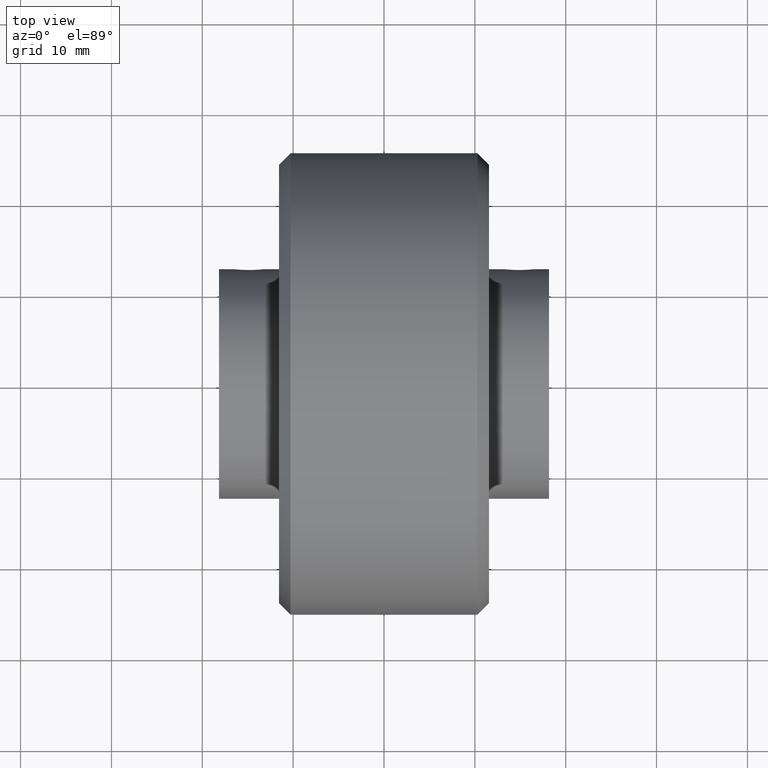
[diagram: clean part render]
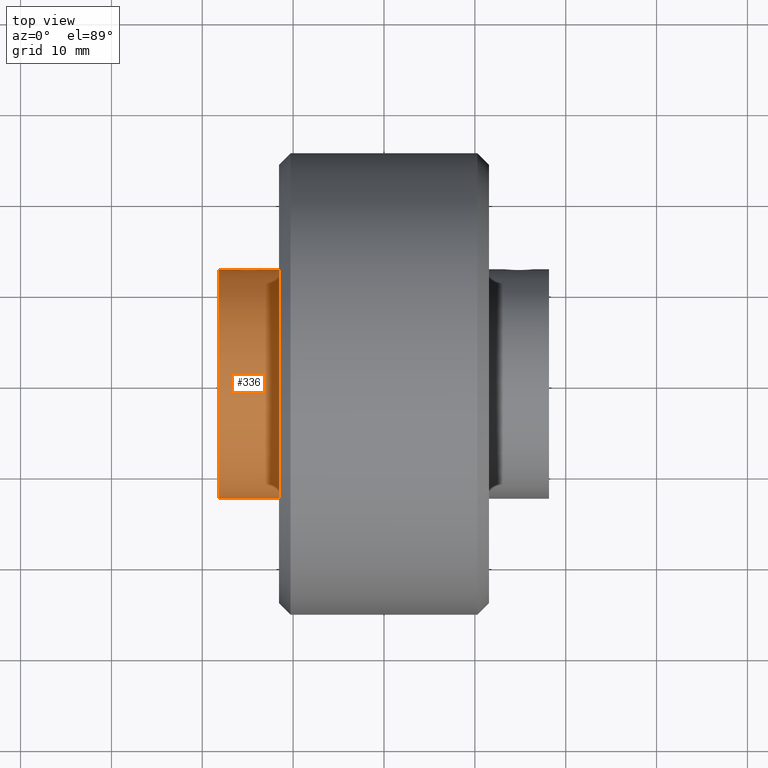
[diagram: same view with one face highlighted and labeled with its STEP entity id]
A machine part, top view. The second image highlights one B-rep face of the part: STEP entity #336.
In plain terms, the highlighted cylindrical surface (partial cylindrical patch) has radius 12.6365 mm, axis along (-1, -0, -0).
Its self-contained STEP definition (entity closure, byte-faithful):
#74 = CARTESIAN_POINT ( 'NONE',  ( -0.6529999999999996900, 0.4974999999999998300, 6.092617825759652000E-017 ) ) ;
#229 = AXIS2_PLACEMENT_3D ( 'NONE', #1261, #1269, #1270 ) ;
#239 = AXIS2_PLACEMENT_3D ( 'NONE', #1377, #1384, #1385 ) ;
#336 = ADVANCED_FACE ( 'NONE', ( #3236 ), #3237, .T. ) ;
#442 = CARTESIAN_POINT ( 'NONE',  ( -0.7149999999999998600, 0.0000000000000000000, 0.0000000000000000000 ) ) ;
#449 = DIRECTION ( 'NONE',  ( 0.0000000000000000000, -1.000000000000000000, 0.0000000000000000000 ) ) ;
#480 = VERTEX_POINT ( 'NONE', #74 ) ;
#509 = DIRECTION ( 'NONE',  ( -1.000000000000000000, -1.193989507720394800E-016, -0.0000000000000000000 ) ) ;
#666 = EDGE_CURVE ( 'NONE', #810, #480, #2302, .T. ) ;
#694 = EDGE_CURVE ( 'NONE', #822, #906, #2960, .T. ) ;
#696 = EDGE_CURVE ( 'NONE', #811, #822, #2961, .T. ) ;
#698 = EDGE_CURVE ( 'NONE', #480, #906, #2965, .T. ) ;
#706 = EDGE_CURVE ( 'NONE', #861, #874, #2976, .T. ) ;
#707 = EDGE_CURVE ( 'NONE', #874, #810, #2311, .T. ) ;
#713 = EDGE_CURVE ( 'NONE', #811, #861, #2987, .T. ) ;
#787 = AXIS2_PLACEMENT_3D ( 'NONE', #442, #509, #449 ) ;
#810 = VERTEX_POINT ( 'NONE', #1679 ) ;
#811 = VERTEX_POINT ( 'NONE', #1680 ) ;
#822 = VERTEX_POINT ( 'NONE', #1691 ) ;
#861 = VERTEX_POINT ( 'NONE', #1730 ) ;
#874 = VERTEX_POINT ( 'NONE', #1742 ) ;
#906 = VERTEX_POINT ( 'NONE', #1771 ) ;
#1133 = CARTESIAN_POINT ( 'NONE',  ( -0.5849999999999998500, 0.4928308533361114900, 0.06799999999999979700 ) ) ;
#1165 = CARTESIAN_POINT ( 'NONE',  ( -0.5938830207142883300, 0.4928308533361113700, 0.06799999999999978300 ) ) ;
#1166 = CARTESIAN_POINT ( 'NONE',  ( -0.6028424720717946400, 0.4930859607946174200, 0.06621313039718695900 ) ) ;
#1167 = CARTESIAN_POINT ( 'NONE',  ( -0.6192162959265838900, 0.4939495579814337500, 0.05942876020658748700 ) ) ;
#1168 = CARTESIAN_POINT ( 'NONE',  ( -0.6267948326492739400, 0.4945604948008985300, 0.05436756224237140200 ) ) ;
#1169 = CARTESIAN_POINT ( 'NONE',  ( -0.6362037646503350100, 0.4954738456868829100, 0.04496481347367966400 ) ) ;
#1170 = CARTESIAN_POINT ( 'NONE',  ( -0.6390748424834451500, 0.4957825478354815400, 0.04146831142121698600 ) ) ;
#1171 = CARTESIAN_POINT ( 'NONE',  ( -0.6440075400365025100, 0.4963447752619055700, 0.03408547580094803400 ) ) ;
#1172 = CARTESIAN_POINT ( 'NONE',  ( -0.6460979085372153800, 0.4966007740749729400, 0.03018177955260967600 ) ) ;
#1173 = CARTESIAN_POINT ( 'NONE',  ( -0.6495168674576208300, 0.4970329974667521100, 0.02194238040960994800 ) ) ;
#1174 = CARTESIAN_POINT ( 'NONE',  ( -0.6508259468677055600, 0.4972067672489793300, 0.01762403739834252400 ) ) ;
#1175 = CARTESIAN_POINT ( 'NONE',  ( -0.6525572569719068100, 0.4974389380483991200, 0.008926309745909182000 ) ) ;
#1176 = CARTESIAN_POINT ( 'NONE',  ( -0.6529999999999996900, 0.4974999999999998300, 0.004496481245821215900 ) ) ;
#1177 = CARTESIAN_POINT ( 'NONE',  ( -0.6529999999999996900, 0.4974999999999998300, 6.092617825759652000E-017 ) ) ;
#1261 = CARTESIAN_POINT ( 'NONE',  ( -0.7149999999999997500, 2.340140365472900200E-032, 0.0000000000000000000 ) ) ;
#1269 = DIRECTION ( 'NONE',  ( -1.000000000000000000, -1.193989507720394800E-016, -0.0000000000000000000 ) ) ;
#1270 = DIRECTION ( 'NONE',  ( 0.0000000000000000000, -1.000000000000000000, 0.0000000000000000000 ) ) ;
#1273 = CARTESIAN_POINT ( 'NONE',  ( -0.7149999999999998600, -0.4974999999999998300, 0.0000000000000000000 ) ) ;
#1274 = DIRECTION ( 'NONE',  ( -1.000000000000000000, -1.193989507720394800E-016, -0.0000000000000000000 ) ) ;
#1277 = CARTESIAN_POINT ( 'NONE',  ( -0.7149999999999998600, 0.4974999999999998300, 6.092617825758079200E-017 ) ) ;
#1278 = DIRECTION ( 'NONE',  ( -1.000000000000000000, -1.193989507720394800E-016, -0.0000000000000000000 ) ) ;
#1292 = CARTESIAN_POINT ( 'NONE',  ( -0.5170000000000000200, 0.4974999999999998300, 6.092617750982471700E-017 ) ) ;
#1332 = CARTESIAN_POINT ( 'NONE',  ( -0.7149999999999998600, 0.4974999999999998300, 6.092617825758079200E-017 ) ) ;
#1333 = DIRECTION ( 'NONE',  ( -1.000000000000000000, -1.193989507720394800E-016, -0.0000000000000000000 ) ) ;
#1335 = CARTESIAN_POINT ( 'NONE',  ( -0.5170000000000000200, 0.4974999999999996600, 0.004440060742155411800 ) ) ;
#1336 = CARTESIAN_POINT ( 'NONE',  ( -0.5174450820282461300, 0.4974386118475518400, 0.008950558437838535300 ) ) ;
#1337 = CARTESIAN_POINT ( 'NONE',  ( -0.5191863618780040400, 0.4972051292751332200, 0.01767327008978636400 ) ) ;
#1338 = CARTESIAN_POINT ( 'NONE',  ( -0.5204734584582795300, 0.4970342628313191800, 0.02191346905394467700 ) ) ;
#1339 = CARTESIAN_POINT ( 'NONE',  ( -0.5238867875435916400, 0.4966026667283208700, 0.03015045526308759600 ) ) ;
#1340 = CARTESIAN_POINT ( 'NONE',  ( -0.5260152391369987700, 0.4963420945331480900, 0.03412320273796576300 ) ) ;
#1341 = CARTESIAN_POINT ( 'NONE',  ( -0.5309369602333756700, 0.4957812875253513300, 0.04148231804460923700 ) ) ;
#1342 = CARTESIAN_POINT ( 'NONE',  ( -0.5337521530256612600, 0.4954781902422640300, 0.04491940197319346100 ) ) ;
#1343 = CARTESIAN_POINT ( 'NONE',  ( -0.5400923587139745400, 0.4948625985383399200, 0.05125815298330822100 ) ) ;
#1344 = CARTESIAN_POINT ( 'NONE',  ( -0.5435216401024405300, 0.4945596459924564400, 0.05406607158855247100 ) ) ;
#1345 = CARTESIAN_POINT ( 'NONE',  ( -0.5508810092318978700, 0.4939968569084482500, 0.05898719272669372700 ) ) ;
#1346 = CARTESIAN_POINT ( 'NONE',  ( -0.5548589444947799000, 0.4937345925853802700, 0.06111755295544359800 ) ) ;
#1347 = CARTESIAN_POINT ( 'NONE',  ( -0.5630887444975352100, 0.4933005856535923600, 0.06452701285923521900 ) ) ;
#1348 = CARTESIAN_POINT ( 'NONE',  ( -0.5673271043967284000, 0.4931283516772727600, 0.06581375748601084300 ) ) ;
#1349 = CARTESIAN_POINT ( 'NONE',  ( -0.5760503788761143200, 0.4928928237529950400, 0.06755506047048200100 ) ) ;
#1350 = CARTESIAN_POINT ( 'NONE',  ( -0.5805603833266456100, 0.4928308533361115400, 0.06799999999999979700 ) ) ;
#1351 = CARTESIAN_POINT ( 'NONE',  ( -0.5849999999999998500, 0.4928308533361114900, 0.06799999999999979700 ) ) ;
#1377 = CARTESIAN_POINT ( 'NONE',  ( -0.4549999999999999000, 3.104372720073025900E-017, 0.0000000000000000000 ) ) ;
#1384 = DIRECTION ( 'NONE',  ( -1.000000000000000000, -1.193989507720394800E-016, -0.0000000000000000000 ) ) ;
#1385 = DIRECTION ( 'NONE',  ( 1.372787936514705400E-016, -1.000000000000000000, 0.0000000000000000000 ) ) ;
#1679 = CARTESIAN_POINT ( 'NONE',  ( -0.5849999999999998500, 0.4928308533361114900, 0.06799999999999979700 ) ) ;
#1680 = CARTESIAN_POINT ( 'NONE',  ( -0.4549999999999998500, -0.4974999999999998900, 0.0000000000000000000 ) ) ;
#1691 = CARTESIAN_POINT ( 'NONE',  ( -0.7149999999999997500, -0.4974999999999998300, 0.0000000000000000000 ) ) ;
#1730 = CARTESIAN_POINT ( 'NONE',  ( -0.4550000000000000200, 0.4974999999999999400, 6.092617825758081700E-017 ) ) ;
#1742 = CARTESIAN_POINT ( 'NONE',  ( -0.5170000000000000200, 0.4974999999999998300, 6.092617750982471700E-017 ) ) ;
#1771 = CARTESIAN_POINT ( 'NONE',  ( -0.7149999999999997500, 0.4974999999999998300, 6.092617825758079200E-017 ) ) ;
#2067 = ORIENTED_EDGE ( 'NONE', *, *, #713, .T. ) ;
#2092 = ORIENTED_EDGE ( 'NONE', *, *, #706, .T. ) ;
#2126 = ORIENTED_EDGE ( 'NONE', *, *, #707, .T. ) ;
#2179 = ORIENTED_EDGE ( 'NONE', *, *, #666, .T. ) ;
#2302 = B_SPLINE_CURVE_WITH_KNOTS ( 'NONE', 3,
 ( #1133, #1165, #1166, #1167, #1168, #1169, #1170, #1171, #1172, #1173, #1174, #1175, #1176, #1177 ),
 .UNSPECIFIED., .F., .F.,
 ( 4, 2, 2, 2, 2, 2, 4 ),
 ( 0.005406337690695092000, 0.006082258517415260900, 0.006758179344135425500, 0.007096139757495506900, 0.007434100170855589100, 0.007772060584215671400, 0.008110020997575753700 ),
 .UNSPECIFIED. ) ;
#2311 = B_SPLINE_CURVE_WITH_KNOTS ( 'NONE', 3,
 ( #1292, #1335, #1336, #1337, #1338, #1339, #1340, #1341, #1342, #1343, #1344, #1345, #1346, #1347, #1348, #1349, #1350, #1351 ),
 .UNSPECIFIED., .F., .F.,
 ( 4, 2, 2, 2, 2, 2, 2, 2, 4 ),
 ( 0.002703807127102152500, 0.003041623447551269700, 0.003379439768000387000, 0.003717256088449504200, 0.004055072408898622300, 0.004392888729347739500, 0.004730705049796857600, 0.005068521370245974800, 0.005406337690695092000 ),
 .UNSPECIFIED. ) ;
#2341 = ORIENTED_EDGE ( 'NONE', *, *, #696, .F. ) ;
#2361 = ORIENTED_EDGE ( 'NONE', *, *, #694, .F. ) ;
#2393 = ORIENTED_EDGE ( 'NONE', *, *, #698, .T. ) ;
#2960 = CIRCLE ( 'NONE', #229, 0.4974999999999998300 ) ;
#2961 = LINE ( 'NONE', #1273, #2962 ) ;
#2962 = VECTOR ( 'NONE', #1274, 39.37007874015748100 ) ;
#2965 = LINE ( 'NONE', #1277, #2966 ) ;
#2966 = VECTOR ( 'NONE', #1278, 39.37007874015748100 ) ;
#2976 = LINE ( 'NONE', #1332, #2977 ) ;
#2977 = VECTOR ( 'NONE', #1333, 39.37007874015748100 ) ;
#2987 = CIRCLE ( 'NONE', #239, 0.4974999999999998900 ) ;
#3236 = FACE_OUTER_BOUND ( 'NONE', #3732, .T. ) ;
#3237 = CYLINDRICAL_SURFACE ( 'NONE', #787, 0.4974999999999998300 ) ;
#3732 = EDGE_LOOP ( 'NONE', ( #2067, #2092, #2126, #2179, #2393, #2361, #2341 ) ) ;